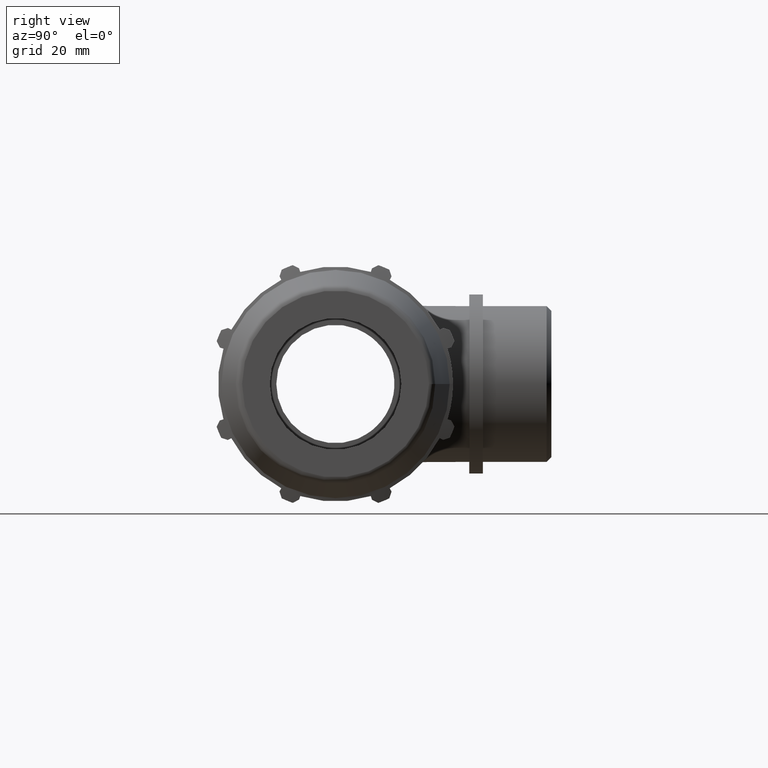
[diagram: clean part render]
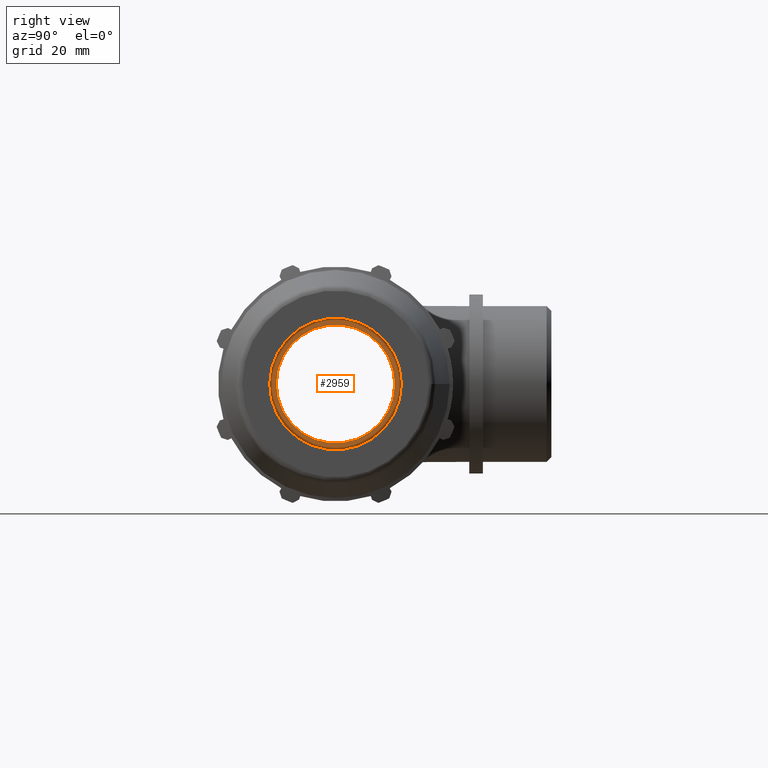
[diagram: same view with one face highlighted and labeled with its STEP entity id]
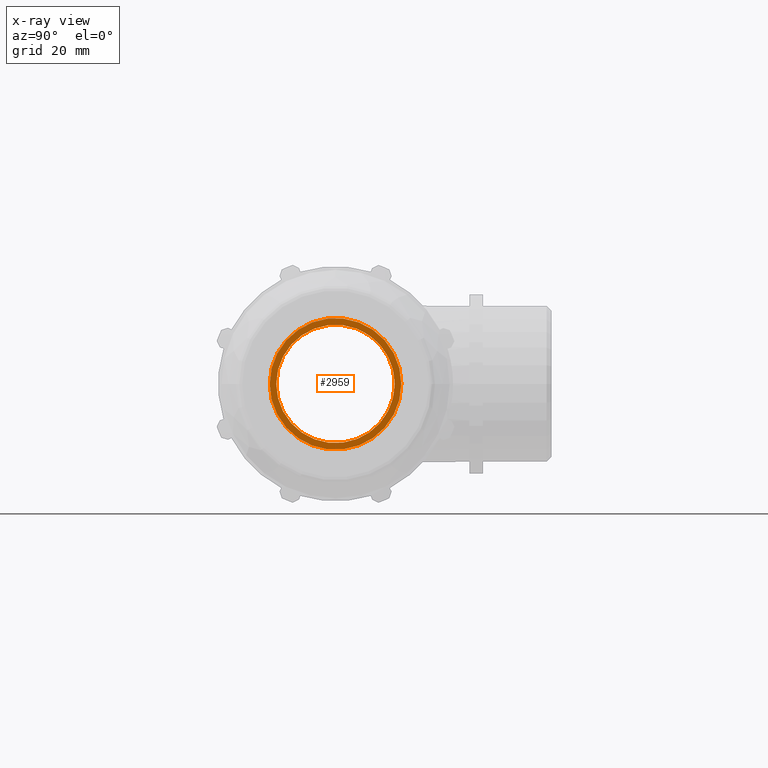
[diagram: x-ray of the same camera — body ghosted, the highlighted face saturated]
A machine part, right view. The second image highlights one B-rep face of the part: STEP entity #2959.
The next image is the same camera in x-ray: the body ghosted, the highlighted face saturated — about 0% of this face is hidden behind the body in this view.
In plain terms, the highlighted planar face has unit normal (1, 0, 0).
Its self-contained STEP definition (entity closure, byte-faithful):
#96=PLANE('',#3235);
#252=CIRCLE('',#3167,25.);
#279=CIRCLE('',#3236,22.5);
#744=FACE_BOUND('',#1095,.T.);
#902=FACE_OUTER_BOUND('',#1094,.T.);
#1094=EDGE_LOOP('',(#2541));
#1095=EDGE_LOOP('',(#2542));
#1361=VERTEX_POINT('',#4911);
#1396=VERTEX_POINT('',#5071);
#1719=EDGE_CURVE('',#1361,#1361,#252,.T.);
#1786=EDGE_CURVE('',#1396,#1396,#279,.T.);
#2541=ORIENTED_EDGE('',*,*,#1719,.T.);
#2542=ORIENTED_EDGE('',*,*,#1786,.F.);
#2959=ADVANCED_FACE('',(#902,#744),#96,.T.);
#3167=AXIS2_PLACEMENT_3D('',#4912,#3801,#3802);
#3235=AXIS2_PLACEMENT_3D('',#5070,#3969,#3970);
#3236=AXIS2_PLACEMENT_3D('',#5072,#3971,#3972);
#3801=DIRECTION('center_axis',(1.,5.59195078520197E-16,0.));
#3802=DIRECTION('ref_axis',(0.,0.,-1.));
#3969=DIRECTION('center_axis',(1.,5.59195078520197E-16,0.));
#3970=DIRECTION('ref_axis',(0.,0.,-1.));
#3971=DIRECTION('center_axis',(1.,5.59195078520197E-16,0.));
#3972=DIRECTION('ref_axis',(0.,0.,-1.));
#4911=CARTESIAN_POINT('',(22.,25.,0.));
#4912=CARTESIAN_POINT('Origin',(22.,1.23022917274443E-14,0.));
#5070=CARTESIAN_POINT('Origin',(22.,22.5,0.));
#5071=CARTESIAN_POINT('',(22.,22.5,0.));
#5072=CARTESIAN_POINT('Origin',(22.,1.23022917274443E-14,0.));